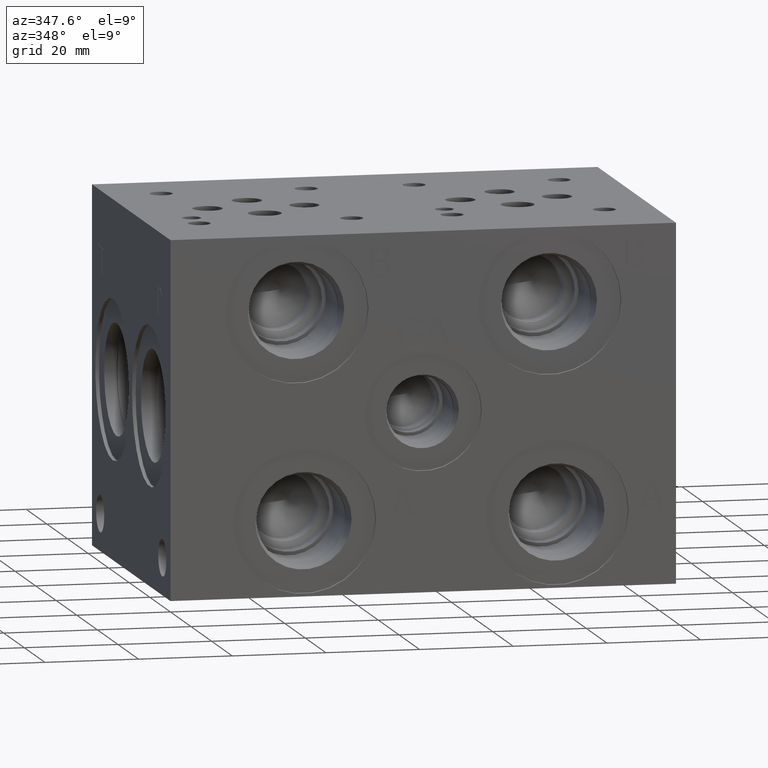
[diagram: clean part render]
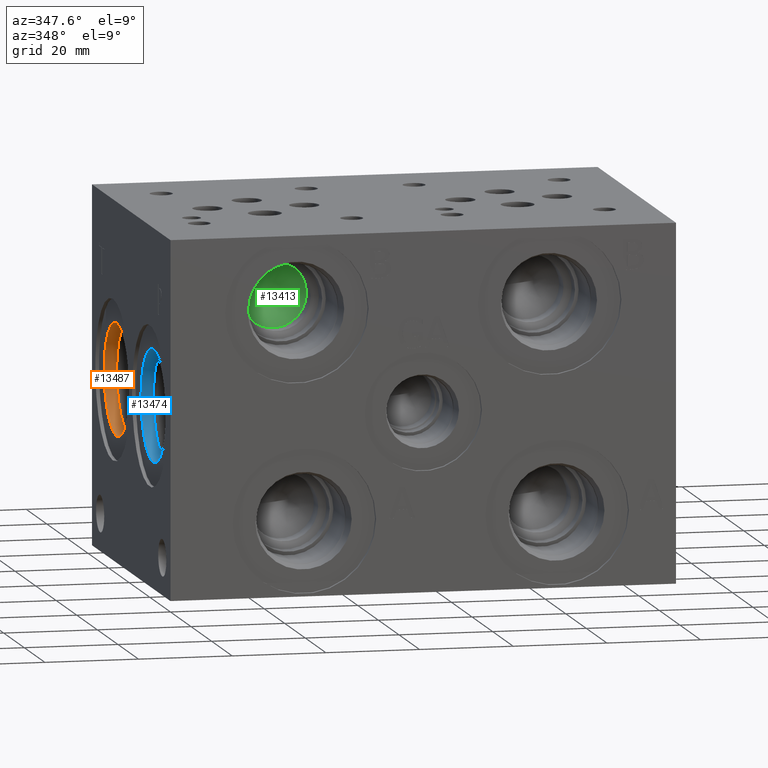
[diagram: same view with three faces highlighted in distinct colors, each labeled with its STEP entity id]
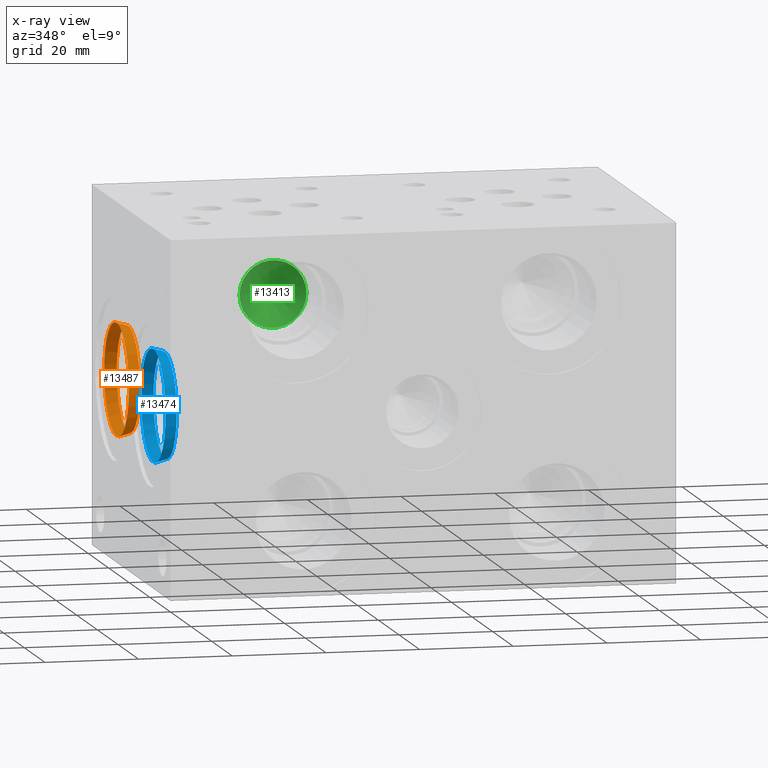
[diagram: x-ray of the same camera — body ghosted, the three highlighted faces saturated]
A machine part, auxiliary view with three faces highlighted in distinct colors.
The next image is the same camera in x-ray (body ghosted, the three faces saturated) — at least one of them is partly hidden behind the body in this view.
Their STEP definitions:

[orange] entity #13487 — the highlighted conical surface has half-angle 15 deg.
#78=CONICAL_SURFACE('',#14334,11.61415,0.261799387657294);
#487=CIRCLE('',#14332,11.9507);
#488=CIRCLE('',#14333,11.9507);
#489=CIRCLE('',#14335,11.2776);
#490=CIRCLE('',#14336,11.2776);
#1853=FACE_OUTER_BOUND('',#2643,.T.);
#2643=EDGE_LOOP('',(#11860,#11861,#11862,#11863,#11864,#11865));
#3845=LINE('',#23480,#5023);
#5023=VECTOR('',#17174,11.61415);
#6309=VERTEX_POINT('',#23474);
#6310=VERTEX_POINT('',#23475);
#6311=VERTEX_POINT('',#23479);
#6312=VERTEX_POINT('',#23481);
#8183=EDGE_CURVE('',#6309,#6310,#487,.T.);
#8184=EDGE_CURVE('',#6310,#6309,#488,.T.);
#8185=EDGE_CURVE('',#6310,#6311,#3845,.T.);
#8186=EDGE_CURVE('',#6311,#6312,#489,.T.);
#8187=EDGE_CURVE('',#6312,#6311,#490,.T.);
#11860=ORIENTED_EDGE('',*,*,#8183,.F.);
#11861=ORIENTED_EDGE('',*,*,#8184,.F.);
#11862=ORIENTED_EDGE('',*,*,#8185,.T.);
#11863=ORIENTED_EDGE('',*,*,#8186,.T.);
#11864=ORIENTED_EDGE('',*,*,#8187,.T.);
#11865=ORIENTED_EDGE('',*,*,#8185,.F.);
#13487=ADVANCED_FACE('',(#1853),#78,.F.);
#14332=AXIS2_PLACEMENT_3D('',#23476,#17168,#17169);
#14333=AXIS2_PLACEMENT_3D('',#23477,#17170,#17171);
#14334=AXIS2_PLACEMENT_3D('',#23478,#17172,#17173);
#14335=AXIS2_PLACEMENT_3D('',#23482,#17175,#17176);
#14336=AXIS2_PLACEMENT_3D('',#23483,#17177,#17178);
#17168=DIRECTION('center_axis',(1.,0.,0.));
#17169=DIRECTION('ref_axis',(0.,0.,-1.));
#17170=DIRECTION('center_axis',(1.,0.,0.));
#17171=DIRECTION('ref_axis',(0.,0.,-1.));
#17172=DIRECTION('center_axis',(-1.,0.,0.));
#17173=DIRECTION('ref_axis',(0.,0.,1.));
#17174=DIRECTION('',(0.965925826325783,-3.16961914975373E-17,0.258819044965499));
#17175=DIRECTION('center_axis',(1.,0.,0.));
#17176=DIRECTION('ref_axis',(0.,0.,-1.));
#17177=DIRECTION('center_axis',(1.,0.,0.));
#17178=DIRECTION('ref_axis',(0.,0.,-1.));
#23474=CARTESIAN_POINT('',(0.7874,55.9562,50.0507));
#23475=CARTESIAN_POINT('',(0.787399999999999,55.9562,26.1493));
#23476=CARTESIAN_POINT('Origin',(0.7874,55.9562,38.1));
#23477=CARTESIAN_POINT('Origin',(0.7874,55.9562,38.1));
#23478=CARTESIAN_POINT('Origin',(2.0434217,55.9562,38.1));
#23479=CARTESIAN_POINT('',(3.2994434,55.9562,26.8224));
#23480=CARTESIAN_POINT('',(2.0434217,55.9562,26.48585));
#23481=CARTESIAN_POINT('',(3.2994434,55.9562,49.3776));
#23482=CARTESIAN_POINT('Origin',(3.2994434,55.9562,38.1));
#23483=CARTESIAN_POINT('Origin',(3.2994434,55.9562,38.1));

[blue] entity #13474 — the highlighted conical surface has half-angle 15 deg.
#74=CONICAL_SURFACE('',#14302,5.97535,0.261799387799149);
#469=CIRCLE('',#14301,11.2776);
#470=CIRCLE('',#14303,11.9507);
#471=CIRCLE('',#14304,11.9507);
#1840=FACE_OUTER_BOUND('',#2627,.T.);
#2627=EDGE_LOOP('',(#11800,#11801,#11802,#11803,#11804));
#3835=LINE('',#23419,#5013);
#5013=VECTOR('',#17102,5.97535);
#6289=VERTEX_POINT('',#23412);
#6290=VERTEX_POINT('',#23416);
#6291=VERTEX_POINT('',#23417);
#8154=EDGE_CURVE('',#6289,#6289,#469,.T.);
#8156=EDGE_CURVE('',#6290,#6291,#470,.T.);
#8157=EDGE_CURVE('',#6291,#6289,#3835,.T.);
#8158=EDGE_CURVE('',#6291,#6290,#471,.T.);
#11800=ORIENTED_EDGE('',*,*,#8156,.T.);
#11801=ORIENTED_EDGE('',*,*,#8157,.T.);
#11802=ORIENTED_EDGE('',*,*,#8154,.T.);
#11803=ORIENTED_EDGE('',*,*,#8157,.F.);
#11804=ORIENTED_EDGE('',*,*,#8158,.T.);
#13474=ADVANCED_FACE('',(#1840),#74,.F.);
#14301=AXIS2_PLACEMENT_3D('',#23413,#17095,#17096);
#14302=AXIS2_PLACEMENT_3D('',#23415,#17098,#17099);
#14303=AXIS2_PLACEMENT_3D('',#23418,#17100,#17101);
#14304=AXIS2_PLACEMENT_3D('',#23420,#17103,#17104);
#17095=DIRECTION('center_axis',(1.,0.,0.));
#17096=DIRECTION('ref_axis',(0.,1.,0.));
#17098=DIRECTION('center_axis',(-1.,0.,0.));
#17099=DIRECTION('ref_axis',(0.,1.,0.));
#17100=DIRECTION('center_axis',(-1.,0.,0.));
#17101=DIRECTION('ref_axis',(0.,1.,0.));
#17102=DIRECTION('',(0.965925826289068,0.258819045102521,-3.16961915143176E-17));
#17103=DIRECTION('center_axis',(-1.,0.,0.));
#17104=DIRECTION('ref_axis',(0.,1.,0.));
#23412=CARTESIAN_POINT('',(3.30122339857461,8.9662,38.1));
#23413=CARTESIAN_POINT('Origin',(3.30122339857461,20.2438,38.1));
#23415=CARTESIAN_POINT('Origin',(23.0894897930067,20.2438,38.1));
#23416=CARTESIAN_POINT('',(0.78918,32.1945,38.1));
#23417=CARTESIAN_POINT('',(0.789179999999998,8.2931,38.1));
#23418=CARTESIAN_POINT('Origin',(0.78918,20.2438,38.1));
#23419=CARTESIAN_POINT('',(23.0894897930067,14.26845,38.1));
#23420=CARTESIAN_POINT('Origin',(0.78918,20.2438,38.1));

[green] entity #13413 — the highlighted conical surface has half-angle 60 deg.
#53=CONICAL_SURFACE('',#14155,3.57505,1.0471975511966);
#384=CIRCLE('',#14156,7.1501);
#385=CIRCLE('',#14157,7.1501);
#1779=FACE_OUTER_BOUND('',#2555,.T.);
#2555=EDGE_LOOP('',(#11516,#11517,#11518,#11519));
#3785=LINE('',#23130,#4963);
#4963=VECTOR('',#16758,3.57505);
#6197=VERTEX_POINT('',#23126);
#6198=VERTEX_POINT('',#23127);
#6199=VERTEX_POINT('',#23129);
#8020=EDGE_CURVE('',#6197,#6198,#384,.T.);
#8021=EDGE_CURVE('',#6198,#6199,#3785,.T.);
#8022=EDGE_CURVE('',#6198,#6197,#385,.T.);
#11516=ORIENTED_EDGE('',*,*,#8020,.T.);
#11517=ORIENTED_EDGE('',*,*,#8021,.T.);
#11518=ORIENTED_EDGE('',*,*,#8021,.F.);
#11519=ORIENTED_EDGE('',*,*,#8022,.T.);
#13413=ADVANCED_FACE('',(#1779),#53,.F.);
#14155=AXIS2_PLACEMENT_3D('',#23125,#16754,#16755);
#14156=AXIS2_PLACEMENT_3D('',#23128,#16756,#16757);
#14157=AXIS2_PLACEMENT_3D('',#23131,#16759,#16760);
#16754=DIRECTION('center_axis',(0.,-1.,0.));
#16755=DIRECTION('ref_axis',(1.,0.,0.));
#16756=DIRECTION('center_axis',(0.,-1.,0.));
#16757=DIRECTION('ref_axis',(1.,0.,0.));
#16758=DIRECTION('',(0.866025403784439,0.5,1.06057523872491E-16));
#16759=DIRECTION('center_axis',(0.,-1.,0.));
#16760=DIRECTION('ref_axis',(1.,0.,0.));
#23125=CARTESIAN_POINT('Origin',(26.9748,25.1926260798664,60.325));
#23126=CARTESIAN_POINT('',(34.1249,23.12857,60.325));
#23127=CARTESIAN_POINT('',(19.8247,23.12857,60.325));
#23128=CARTESIAN_POINT('Origin',(26.9748,23.12857,60.325));
#23129=CARTESIAN_POINT('',(26.9748,27.2566821597327,60.325));
#23130=CARTESIAN_POINT('',(23.39975,25.1926260798664,60.325));
#23131=CARTESIAN_POINT('Origin',(26.9748,23.12857,60.325));